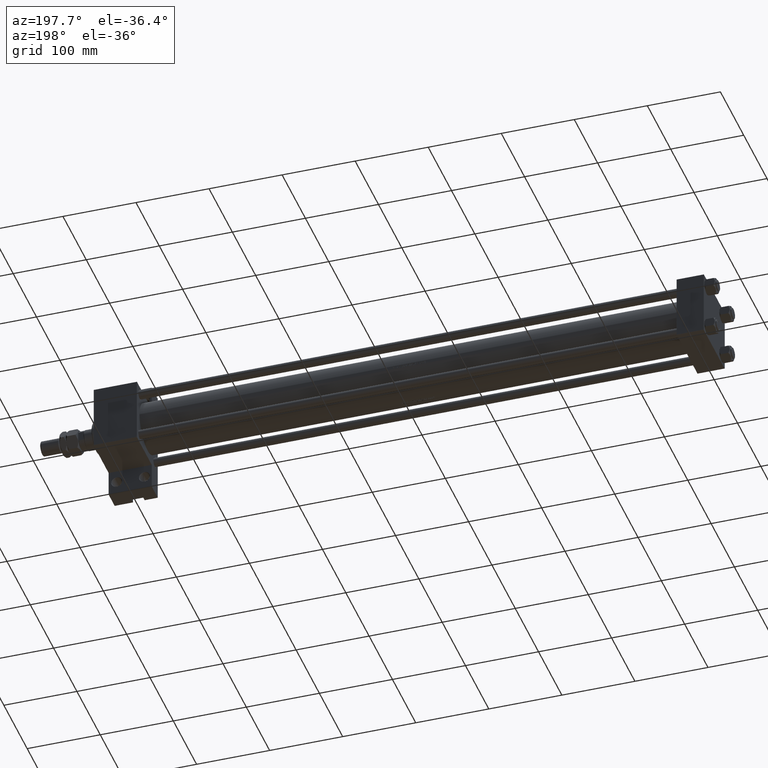
[diagram: clean part render]
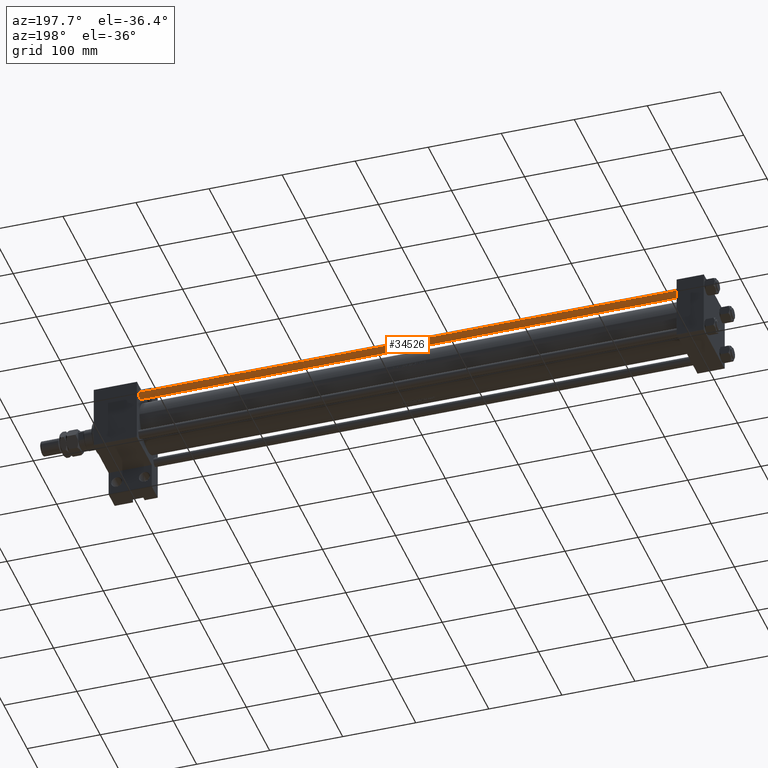
[diagram: same view with one face highlighted and labeled with its STEP entity id]
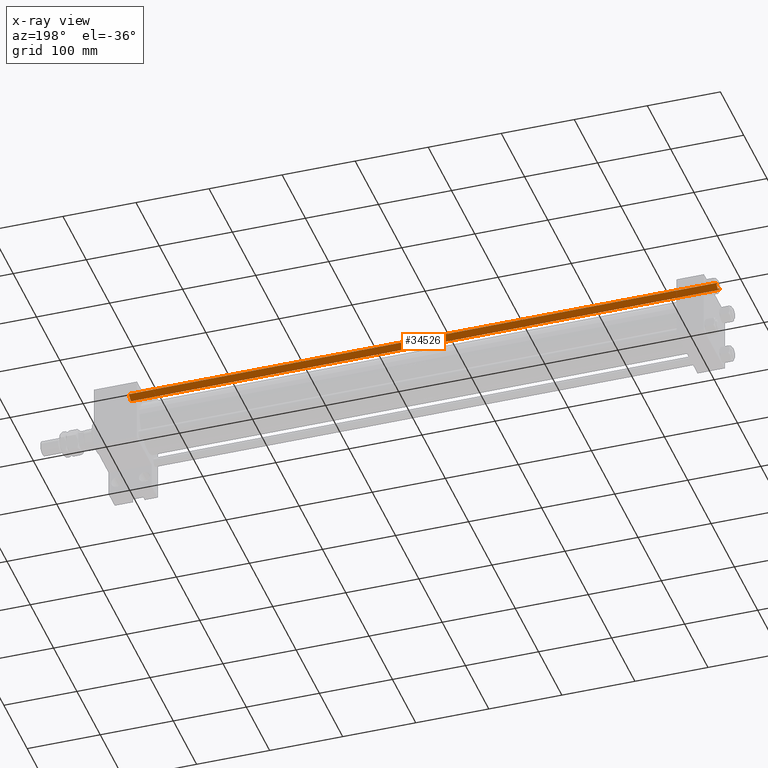
[diagram: x-ray of the same camera — body ghosted, the highlighted face saturated]
A machine part, auxiliary view. The second image highlights one B-rep face of the part: STEP entity #34526.
The next image is the same camera in x-ray: the body ghosted, the highlighted face saturated — about 0% of this face is hidden behind the body in this view.
In plain terms, the highlighted cylindrical surface (edge-blend (fillet) strip) has radius 6 mm, axis along (1, -0, 0).
Its self-contained STEP definition (entity closure, byte-faithful):
#1797 = ORIENTED_EDGE ( 'NONE', *, *, #13852, .T. ) ;
#3792 = DIRECTION ( 'NONE',  ( -0.000000000000000000, -0.000000000000000000, -1.000000000000000000 ) ) ;
#4668 = LINE ( 'NONE', #9131, #27910 ) ;
#4912 = DIRECTION ( 'NONE',  ( -0.000000000000000000, -0.000000000000000000, -1.000000000000000000 ) ) ;
#6443 = CARTESIAN_POINT ( 'NONE',  ( 6.000000000000000888, 7.347880794884120722E-16, 0.5000000000000559552 ) ) ;
#6916 = VERTEX_POINT ( 'NONE', #6443 ) ;
#7819 = DIRECTION ( 'NONE',  ( 1.000000000000000000, 0.000000000000000000, 0.000000000000000000 ) ) ;
#9131 = CARTESIAN_POINT ( 'NONE',  ( 6.000000000000000888, 7.347880794884120722E-16, 805.0000000000000000 ) ) ;
#9173 = ORIENTED_EDGE ( 'NONE', *, *, #36114, .T. ) ;
#10233 = DIRECTION ( 'NONE',  ( -1.000000000000000000, 0.000000000000000000, 0.000000000000000000 ) ) ;
#10713 = CARTESIAN_POINT ( 'NONE',  ( 0.000000000000000000, 0.000000000000000000, 805.0000000000000000 ) ) ;
#10726 = DIRECTION ( 'NONE',  ( 1.000000000000000000, 0.000000000000000000, 0.000000000000000000 ) ) ;
#11250 = CARTESIAN_POINT ( 'NONE',  ( -6.000000000000000888, 0.000000000000000000, 805.0000000000000000 ) ) ;
#11945 = EDGE_LOOP ( 'NONE', ( #1797, #45116, #9173, #16826 ) ) ;
#13852 = EDGE_CURVE ( 'NONE', #18474, #17959, #24329, .T. ) ;
#16290 = EDGE_CURVE ( 'NONE', #18474, #20754, #40915, .T. ) ;
#16573 = CIRCLE ( 'NONE', #26108, 6.000000000000000888 ) ;
#16826 = ORIENTED_EDGE ( 'NONE', *, *, #16290, .F. ) ;
#17959 = VERTEX_POINT ( 'NONE', #43053 ) ;
#18474 = VERTEX_POINT ( 'NONE', #48231 ) ;
#18673 = CYLINDRICAL_SURFACE ( 'NONE', #26848, 6.000000000000000888 ) ;
#19490 = CARTESIAN_POINT ( 'NONE',  ( 0.000000000000000000, 0.000000000000000000, 0.5000000000000559552 ) ) ;
#20754 = VERTEX_POINT ( 'NONE', #29729 ) ;
#24329 = CIRCLE ( 'NONE', #29926, 6.000000000000000888 ) ;
#26108 = AXIS2_PLACEMENT_3D ( 'NONE', #19490, #34430, #7819 ) ;
#26848 = AXIS2_PLACEMENT_3D ( 'NONE', #10713, #48372, #10233 ) ;
#27910 = VECTOR ( 'NONE', #4912, 1000.000000000000000 ) ;
#29729 = CARTESIAN_POINT ( 'NONE',  ( -6.000000000000000888, 0.000000000000000000, 0.5000000000000559552 ) ) ;
#29906 = DIRECTION ( 'NONE',  ( 0.000000000000000000, 0.000000000000000000, -1.000000000000000000 ) ) ;
#29926 = AXIS2_PLACEMENT_3D ( 'NONE', #48626, #29906, #10726 ) ;
#32388 = VECTOR ( 'NONE', #3792, 1000.000000000000000 ) ;
#33139 = FACE_OUTER_BOUND ( 'NONE', #11945, .T. ) ;
#34430 = DIRECTION ( 'NONE',  ( -0.000000000000000000, -0.000000000000000000, 1.000000000000000000 ) ) ;
#34526 = ADVANCED_FACE ( 'NONE', ( #33139 ), #18673, .T. ) ;
#36114 = EDGE_CURVE ( 'NONE', #6916, #20754, #16573, .T. ) ;
#40915 = LINE ( 'NONE', #11250, #32388 ) ;
#43053 = CARTESIAN_POINT ( 'NONE',  ( 6.000000000000000888, 7.347880794884120722E-16, 804.5000000000002274 ) ) ;
#45116 = ORIENTED_EDGE ( 'NONE', *, *, #46522, .T. ) ;
#46522 = EDGE_CURVE ( 'NONE', #17959, #6916, #4668, .T. ) ;
#48231 = CARTESIAN_POINT ( 'NONE',  ( -6.000000000000000888, 0.000000000000000000, 804.5000000000002274 ) ) ;
#48372 = DIRECTION ( 'NONE',  ( -0.000000000000000000, -0.000000000000000000, -1.000000000000000000 ) ) ;
#48626 = CARTESIAN_POINT ( 'NONE',  ( 0.000000000000000000, 0.000000000000000000, 804.5000000000002274 ) ) ;